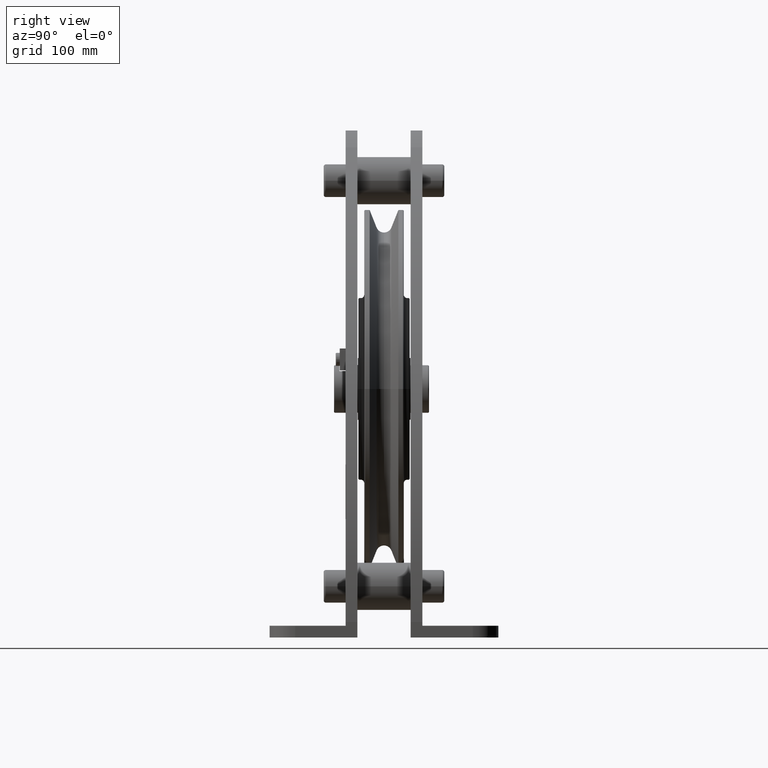
[diagram: clean part render]
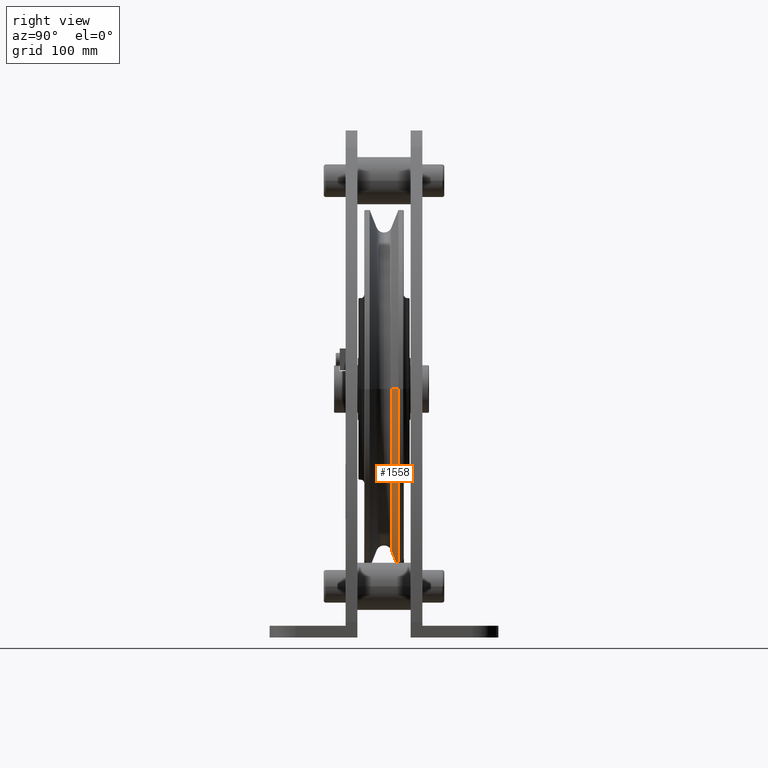
[diagram: same view with one face highlighted and labeled with its STEP entity id]
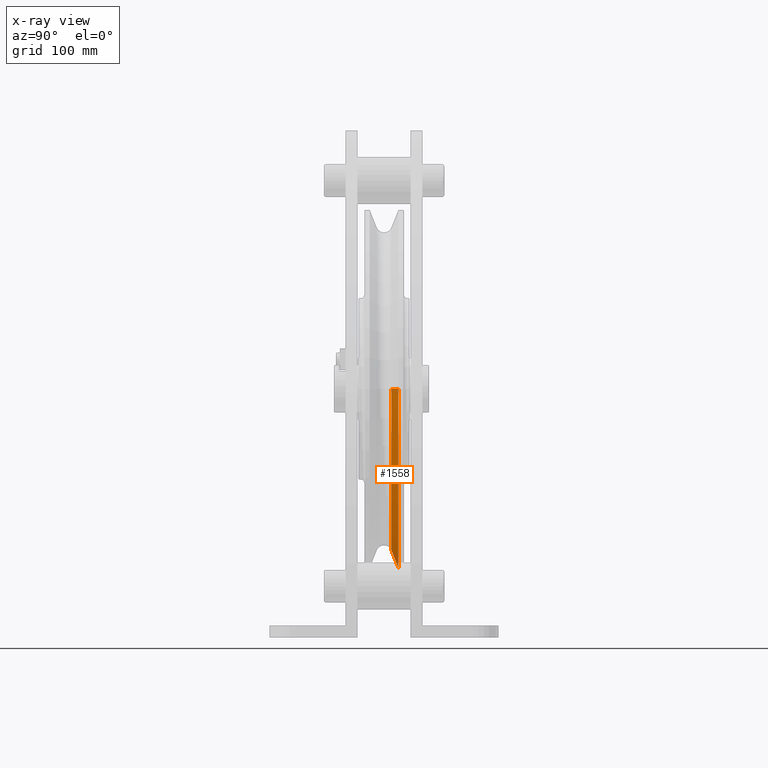
[diagram: x-ray of the same camera — body ghosted, the highlighted face saturated]
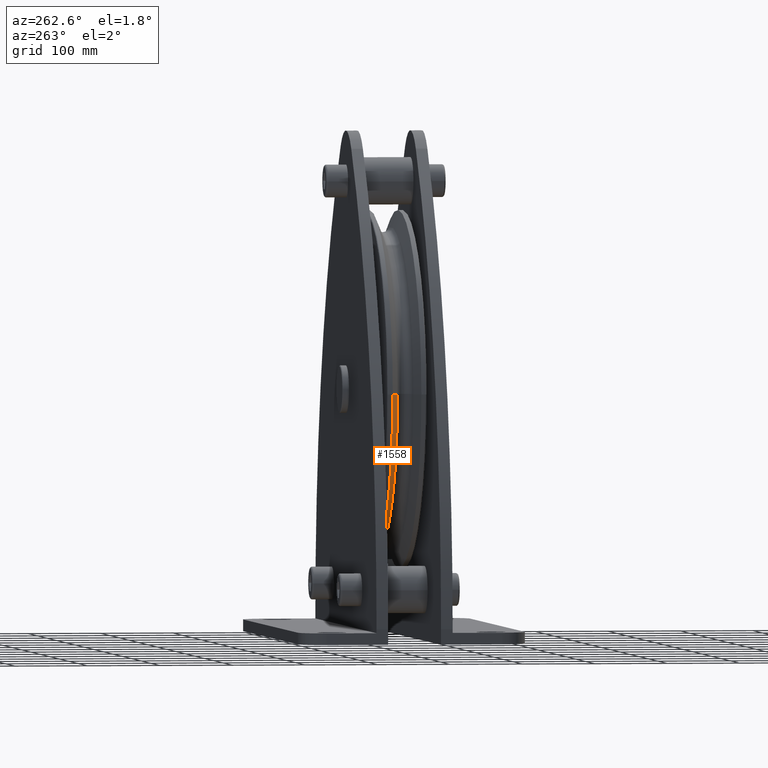
[diagram: same view with one face highlighted and labeled with its STEP entity id]
A machine part, right view. The second image highlights one B-rep face of the part: STEP entity #1558.
The next image is the same camera in x-ray: the body ghosted, the highlighted face saturated — about 0% of this face is hidden behind the body in this view.
A second angle (auxiliary view) of the same face is appended — the face is thin or edge-on in the first view.
In plain terms, the highlighted conical surface has half-angle 67.5 deg.
Its self-contained STEP definition (entity closure, byte-faithful):
#1558=ADVANCED_FACE('',(#3362),#3363,.T.);
#3362=FACE_OUTER_BOUND('',#5394,.T.);
#3363=CONICAL_SURFACE('',#5395,233.3643755,1.17809724323149);
#5394=EDGE_LOOP('',(#10305,#10306,#10307,#10308));
#5395=AXIS2_PLACEMENT_3D('',#10309,#10310,#10311);
#10305=ORIENTED_EDGE('',*,*,#12527,.T.);
#10306=ORIENTED_EDGE('',*,*,#12532,.F.);
#10307=ORIENTED_EDGE('',*,*,#12528,.T.);
#10308=ORIENTED_EDGE('',*,*,#13932,.T.);
#10309=CARTESIAN_POINT('',(0.0,14.8899205,0.0));
#10310=DIRECTION('',(-0.0,1.0,-0.0));
#10311=DIRECTION('',(1.0,0.0,0.0));
#12527=EDGE_CURVE('',#15221,#15227,#15228,.T.);
#12528=EDGE_CURVE('',#15229,#15223,#15230,.T.);
#12532=EDGE_CURVE('',#15229,#15227,#15234,.T.);
#13932=EDGE_CURVE('',#15223,#15221,#17310,.T.);
#15221=VERTEX_POINT('',#22073);
#15223=VERTEX_POINT('',#22076);
#15227=VERTEX_POINT('',#22081);
#15228=LINE('',#22082,#22083);
#15229=VERTEX_POINT('',#22084);
#15230=LINE('',#22085,#22086);
#15234=CIRCLE('',#22090,221.728751);
#17310=CIRCLE('',#24900,245.0);
#22073=CARTESIAN_POINT('',(245.0,19.709554,0.0));
#22076=CARTESIAN_POINT('',(-245.0,19.709554,3.00038465791101E-014));
#22081=CARTESIAN_POINT('',(221.728751,10.070287,0.0));
#22082=CARTESIAN_POINT('',(233.3643755,14.8899205,-2.85788935491096E-014));
#22083=VECTOR('',#27451,1.0);
#22084=CARTESIAN_POINT('',(-221.728751,10.070287,2.7153940519109E-014));
#22085=CARTESIAN_POINT('',(-233.3643755,14.8899205,2.85788935491096E-014));
#22086=VECTOR('',#27452,1.0);
#22090=AXIS2_PLACEMENT_3D('',#27459,#27460,#27461);
#24900=AXIS2_PLACEMENT_3D('',#29072,#29073,#29074);
#27451=DIRECTION('',(-0.923879531797703,-0.382683434087833,1.13142611141381E-016));
#27452=DIRECTION('',(-0.923879531797703,0.382683434087833,1.13142611141381E-016));
#27459=CARTESIAN_POINT('',(0.0,10.070287,0.0));
#27460=DIRECTION('',(0.0,-1.0,0.0));
#27461=DIRECTION('',(1.0,0.0,0.0));
#29072=CARTESIAN_POINT('',(0.0,19.709554,0.0));
#29073=DIRECTION('',(0.0,-1.0,0.0));
#29074=DIRECTION('',(1.0,0.0,0.0));